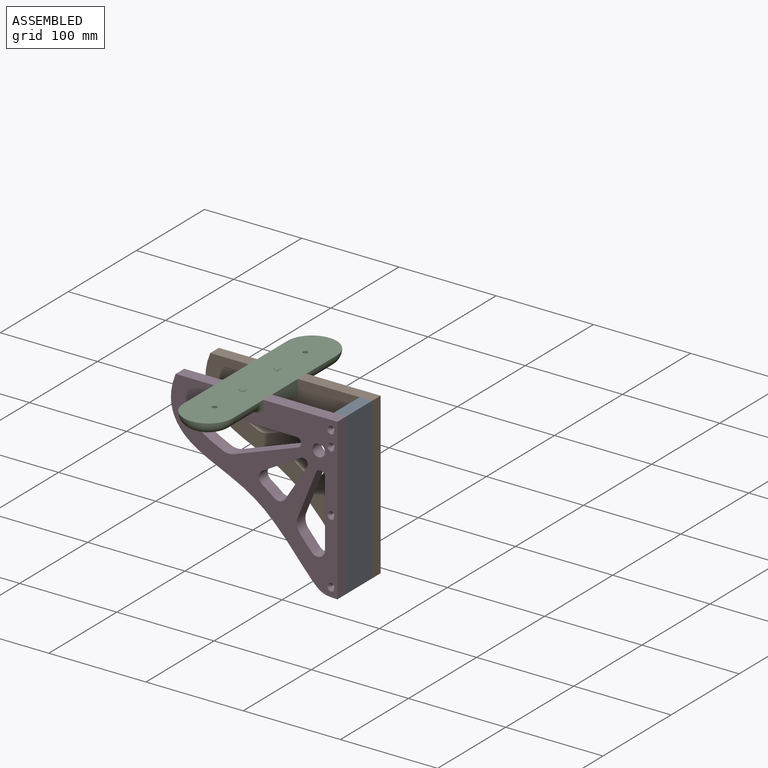
[diagram: assembled view]
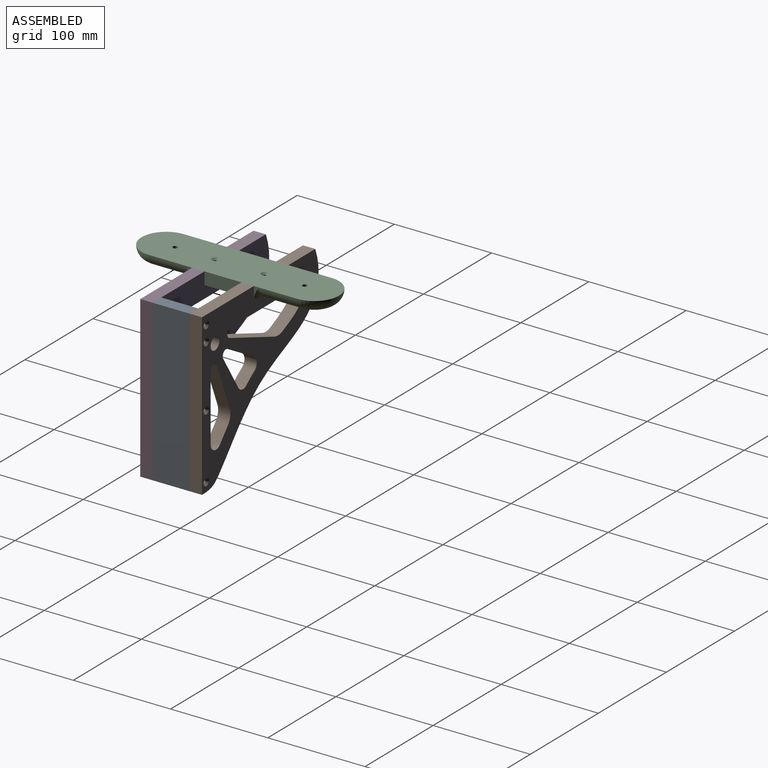
[diagram: assembled view, second angle]
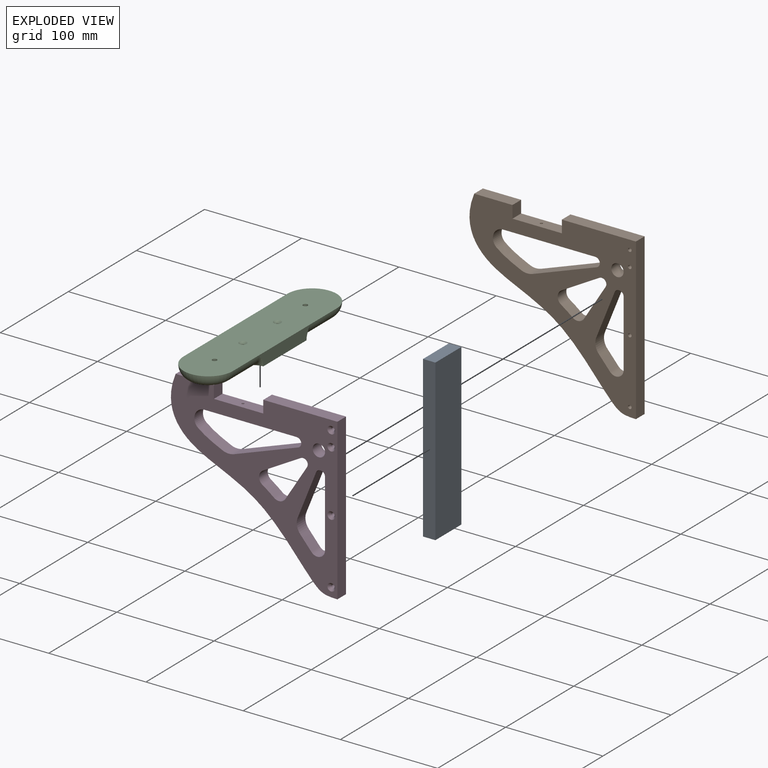
[diagram: exploded view]
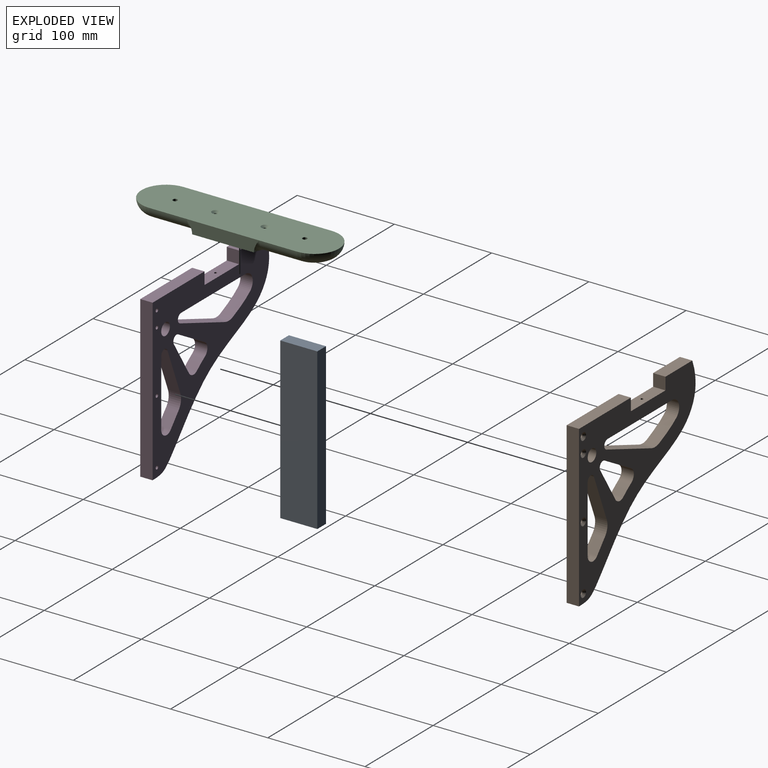
[diagram: exploded view, second angle]
ASSEMBLY  parts=4 mates=3
PART A: 6 faces, bbox 12.7x38.1x165.1 mm
  f0: plane 38.1x12.7mm, normal (0,0,-1), area 483.9mm2, adj f1,f3,f4,f5
  f1: plane 165.1x12.7mm, normal (0,1,0), area 2096.8mm2, adj f0,f2,f4,f5
  f2: plane 38.1x12.7mm, normal (0,0,1), area 483.9mm2, adj f1,f3,f4,f5
  f3: plane 165.1x12.7mm, normal (0,-1,0), area 2096.8mm2, adj f0,f2,f4,f5
  f4: plane 165.1x38.1mm, normal (1,0,0), area 6290.3mm2, adj f0,f1,f2,f3
  f5: plane 165.1x38.1mm, normal (-1,0,0), area 6290.3mm2, adj f0,f1,f2,f3
PART B: 37 faces, bbox 173.5x12.7x165.1 mm
  f0: plane 12.7x12.7mm, normal (-1,0,0), area 161.3mm2, adj f1,f25,f26,f27
  f1: plane 50.8x12.7mm, normal (0,0,1), area 639.4mm2, adj f0,f2,f26,f27,f36
  f2: plane 12.7x12.7mm, normal (1,0,0), area 161.3mm2, adj f1,f3,f26,f27
  f3: plane 39.37x12.7mm, normal (0,0,1), area 500mm2, adj f2,f4,f26,f27
  f4: extruded ~171.05x165.1mm, area 3244.6mm2, adj f3,f5,f26,f27
  f5: plane 165.1x12.7mm, normal (1,0,0), area 2096.8mm2, adj f4,f25,f26,f27
  f6: extruded ~25.18x14.22mm, area 368.4mm2, adj f7,f21,f26,f27
  f7: cylinder r=10.46mm len=18.47mm, axis (0,1,0), area 324.6mm2, adj f6,f8,f26,f27
  f8: plane 94.77x12.7mm, normal (0,0,-1), area 1197.8mm2, adj f7,f9,f26,f27,f36
  f9: cylinder r=4.76mm len=12.7mm, axis (0,1,0), area 169mm2, adj f8,f10,f26,f27
  f10: plane 65.97x23.92mm, normal (-0.34,0,0.94), area 891.2mm2, adj f9,f21,f26,f27
  f11: extruded ~13.38x12.7mm, area 224.2mm2, adj f12,f22,f26,f27
  f12: cylinder r=14.3mm len=14.8mm, axis (0,1,0), area 200.9mm2, adj f11,f13,f26,f27
  f13: plane 47.12x18.88mm, normal (0.93,0,-0.37), area 644.7mm2, adj f12,f14,f26,f27
  f14: cylinder r=4.76mm len=12.7mm, axis (0,1,0), area 167mm2, adj f13,f15,f26,f27
  f15: plane 68.42x12.7mm, normal (-1,0,0), area 868.9mm2, adj f14,f22,f26,f27
  f16: extruded ~12.7x11.76mm, area 186mm2, adj f17,f23,f26,f27
  f17: cylinder r=7.92mm len=13.5mm, axis (0,1,0), area 205.4mm2, adj f16,f18,f26,f27
  f18: plane 38.93x22.03mm, normal (0.49,0,-0.87), area 568.1mm2, adj f17,f19,f26,f27
  f19: cylinder r=4.76mm len=12.7mm, axis (0,1,0), area 159.9mm2, adj f18,f20,f26,f27
  f20: plane 35.67x22.28mm, normal (-0.85,0,0.53), area 534.1mm2, adj f19,f23,f26,f27
  f21: cylinder r=15.88mm len=12.7mm, axis (0,1,0), area 156.1mm2, adj f6,f10,f26,f27
  f22: cylinder r=7.92mm len=13.98mm, axis (0,1,0), area 245.5mm2, adj f11,f15,f26,f27
  f23: cylinder r=7.92mm len=12.7mm, axis (0,1,0), area 171.2mm2, adj f16,f20,f26,f27
  f24: cylinder r=6.35mm len=12.7mm, axis (0,1,0), area 506.7mm2, adj f26,f27
  f25: plane 76.2x12.7mm, normal (0,0,1), area 967.7mm2, adj f0,f5,f26,f27
  f26: plane 173.54x165.1mm, normal (0,-1,0), area 11335.1mm2, adj f0,f1,f2,f3,f4,f5,f6,f7
  f27: plane 173.54x165.1mm, normal (0,1,0), area 11186.1mm2, adj f0,f1,f2,f3,f4,f5,f6,f7
  f28: cylinder r=1.83mm len=10.32mm, axis (0,1,0), area 118.6mm2, adj f26,f29
  f29: cone r=1.83mm half-angle=41deg, axis (0,1,0), area 56.8mm2, adj f27,f28
  f30: cylinder r=1.83mm len=10.32mm, axis (0,1,0), area 118.6mm2, adj f26,f31
  f31: cone r=1.83mm half-angle=41deg, axis (0,1,0), area 56.8mm2, adj f27,f30
  f32: cylinder r=1.83mm len=10.32mm, axis (0,1,0), area 118.6mm2, adj f26,f33
  f33: cone r=1.83mm half-angle=41deg, axis (0,1,0), area 56.8mm2, adj f27,f32
  f34: cylinder r=1.83mm len=10.32mm, axis (0,1,0), area 118.6mm2, adj f26,f35
  f35: cone r=1.83mm half-angle=41deg, axis (0,1,0), area 56.8mm2, adj f27,f34
  f36: cylinder r=1.35mm len=12.7mm, axis (0,0,1), area 107.9mm2, adj f1,f8
PART C: 24 faces, bbox 71.7x207.4x32.2 mm
  f0: cylinder r=12.7mm len=39.37mm, axis (0,-1,0), area 785.4mm2, adj f2,f3,f10,f20
  f1: cylinder r=12.7mm len=39.37mm, axis (0,1,0), area 785.4mm2, adj f2,f3,f10,f22
  f2: plane 177.8x50.8mm, normal (0,0,-1), area 6028.1mm2, adj f0,f1,f4,f5,f6,f8,f10,f11
  f3: plane 203.2x50.8mm, normal (0,0,1), area 9641.7mm2, adj f0,f1,f4,f5,f7,f9,f10,f11
  f4: cylinder r=2.39mm len=12.7mm, axis (0,0,1), area 190.5mm2, adj f2,f3
  f5: cylinder r=2.39mm len=12.7mm, axis (0,0,1), area 190.5mm2, adj f2,f3
  f6: cylinder r=1.78mm len=10.67mm, axis (0,0,1), area 119.2mm2, adj f2,f7
  f7: cone r=1.78mm half-angle=45deg, axis (0,0,1), area 50.4mm2, adj f3,f6
  f8: cylinder r=1.78mm len=10.67mm, axis (0,0,1), area 119.2mm2, adj f2,f9
  f9: cone r=1.78mm half-angle=45deg, axis (0,0,1), area 50.4mm2, adj f3,f8
  f10: torus R=12.7mm, axis (0,0,1), area 1302.6mm2, adj f0,f1,f2,f3
  f11: cylinder r=12.7mm len=39.37mm, axis (0,-1,0), area 785.4mm2, adj f2,f3,f13,f21
  f12: cylinder r=12.7mm len=39.37mm, axis (0,1,0), area 785.4mm2, adj f2,f3,f13,f23
  f13: torus R=12.7mm, axis (0,0,1), area 1302.6mm2, adj f2,f3,f11,f12
  f14: plane 73.66x12.7mm, normal (-1,0,0), area 853.1mm2, adj f2,f3,f15,f16,f22,f23
  f15: plane 0.26x0.26mm, normal (0,-1,0), area 0mm2, adj f2,f14,f23
  f16: plane 0.26x0.26mm, normal (0,1,0), area 0mm2, adj f2,f14,f22
  f17: plane 73.66x12.7mm, normal (1,0,0), area 853.1mm2, adj f2,f3,f18,f19,f20,f21
  f18: plane 0.26x0.26mm, normal (0,-1,0), area 0mm2, adj f2,f17,f21
  f19: plane 0.26x0.26mm, normal (0,1,0), area 0mm2, adj f2,f17,f20
  f20: torus R=17.78mm, axis (0,-1,0), area 75.6mm2, adj f0,f2,f17,f19
  f21: torus R=17.78mm, axis (0,-1,0), area 75.6mm2, adj f2,f11,f17,f18
  f22: torus R=17.78mm, axis (0,-1,0), area 75.6mm2, adj f1,f2,f14,f16
  f23: torus R=17.78mm, axis (0,-1,0), area 75.6mm2, adj f2,f12,f14,f15
PART D: 37 faces, bbox 173.5x12.7x165.1 mm
  f0: plane 12.7x12.7mm, normal (-1,0,0), area 161.3mm2, adj f1,f25,f26,f27
  f1: plane 50.8x12.7mm, normal (0,0,1), area 640.1mm2, adj f0,f2,f26,f27,f36
  f2: plane 12.7x12.7mm, normal (1,0,0), area 161.3mm2, adj f1,f3,f26,f27
  f3: plane 39.37x12.7mm, normal (0,0,1), area 500mm2, adj f2,f4,f26,f27
  f4: extruded ~171.05x165.1mm, area 3244.6mm2, adj f3,f5,f26,f27
  f5: plane 165.1x12.7mm, normal (1,0,0), area 2096.8mm2, adj f4,f25,f26,f27
  f6: extruded ~25.18x14.22mm, area 368.4mm2, adj f7,f21,f26,f27
  f7: cylinder r=10.46mm len=18.47mm, axis (0,-1,0), area 324.6mm2, adj f6,f8,f26,f27
  f8: plane 94.77x12.7mm, normal (0,0,-1), area 1198.5mm2, adj f7,f9,f26,f27,f36
  f9: cylinder r=4.76mm len=12.7mm, axis (0,-1,0), area 169mm2, adj f8,f10,f26,f27
  f10: plane 65.97x23.92mm, normal (-0.34,0,0.94), area 891.2mm2, adj f9,f21,f26,f27
  f11: extruded ~13.38x12.7mm, area 224.2mm2, adj f12,f22,f26,f27
  f12: cylinder r=14.3mm len=14.8mm, axis (0,-1,0), area 200.9mm2, adj f11,f13,f26,f27
  f13: plane 47.12x18.88mm, normal (0.93,0,-0.37), area 644.7mm2, adj f12,f14,f26,f27
  f14: cylinder r=4.76mm len=12.7mm, axis (0,-1,0), area 167mm2, adj f13,f15,f26,f27
  f15: plane 68.42x12.7mm, normal (-1,0,0), area 868.9mm2, adj f14,f22,f26,f27
  f16: extruded ~12.7x11.76mm, area 186mm2, adj f17,f23,f26,f27
  f17: cylinder r=7.92mm len=13.5mm, axis (0,-1,0), area 205.4mm2, adj f16,f18,f26,f27
  f18: plane 38.93x22.03mm, normal (0.49,0,-0.87), area 568.1mm2, adj f17,f19,f26,f27
  f19: cylinder r=4.76mm len=12.7mm, axis (0,-1,0), area 159.9mm2, adj f18,f20,f26,f27
  f20: plane 35.67x22.28mm, normal (-0.85,0,0.53), area 534.1mm2, adj f19,f23,f26,f27
  f21: cylinder r=15.87mm len=12.7mm, axis (0,-1,0), area 156.1mm2, adj f6,f10,f26,f27
  f22: cylinder r=7.92mm len=13.98mm, axis (0,-1,0), area 245.5mm2, adj f11,f15,f26,f27
  f23: cylinder r=7.92mm len=12.7mm, axis (0,-1,0), area 171.2mm2, adj f16,f20,f26,f27
  f24: cylinder r=6.35mm len=12.7mm, axis (0,-1,0), area 506.7mm2, adj f26,f27
  f25: plane 76.2x12.7mm, normal (0,0,1), area 967.7mm2, adj f0,f5,f26,f27
  f26: plane 173.54x165.1mm, normal (0,1,0), area 11335.1mm2, adj f0,f1,f2,f3,f4,f5,f6,f7
  f27: plane 173.54x165.1mm, normal (0,-1,0), area 11186.1mm2, adj f0,f1,f2,f3,f4,f5,f6,f7
  f28: cylinder r=1.83mm len=10.32mm, axis (0,-1,0), area 118.6mm2, adj f26,f29
  f29: cone r=1.83mm half-angle=41deg, axis (0,-1,0), area 56.8mm2, adj f27,f28
  f30: cylinder r=1.83mm len=10.32mm, axis (0,-1,0), area 118.6mm2, adj f26,f31
  f31: cone r=1.83mm half-angle=41deg, axis (0,-1,0), area 56.8mm2, adj f27,f30
  f32: cylinder r=1.83mm len=10.32mm, axis (0,-1,0), area 118.6mm2, adj f26,f33
  f33: cone r=1.83mm half-angle=41deg, axis (0,-1,0), area 56.8mm2, adj f27,f32
  f34: cylinder r=1.83mm len=10.32mm, axis (0,-1,0), area 118.6mm2, adj f26,f35
  f35: cone r=1.83mm half-angle=41deg, axis (0,-1,0), area 56.8mm2, adj f27,f34
  f36: cylinder r=1.27mm len=12.7mm, axis (0,0,1), area 101.3mm2, adj f1,f8
PLACE A t=(30.71,-49.09,-66.16)mm
PLACE B t=(43.41,-17.34,16.39)mm
PLACE C t=(-58.19,-49.09,16.39)mm
PLACE D t=(-32.1,-80.84,-63.19)mm
MATE fastened A.f1 <-> B.f26  axis (0,1,0) through (43.41,-30.04,16.39)mm
MATE fastened A.f3 <-> D.f26  axis (0,-1,0) through (43.41,-68.14,16.39)mm
MATE fastened C.f6 <-> B.f36  axis (0,0,-1) through (-58.19,-23.69,3.69)mm
